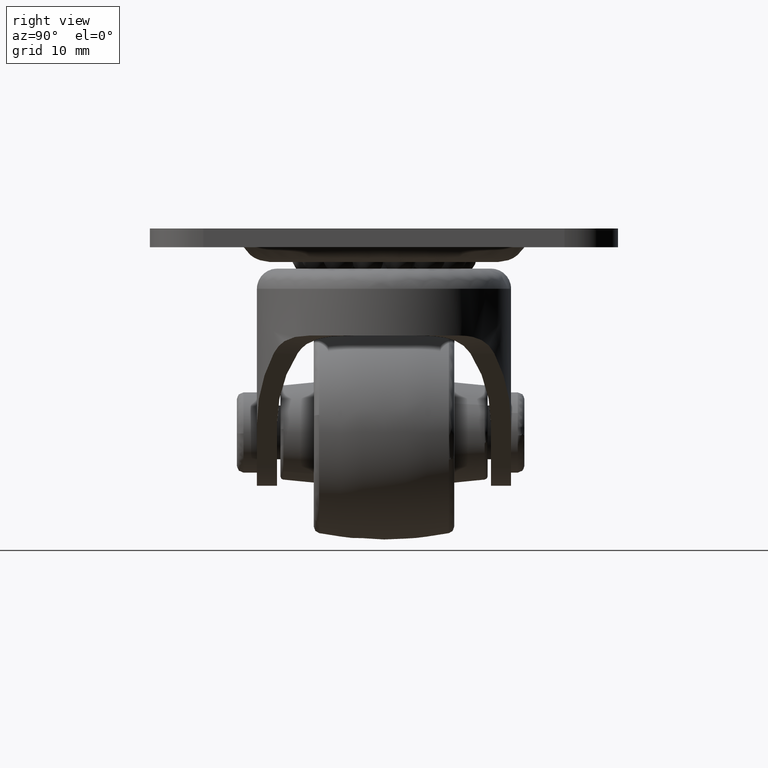
[diagram: clean part render]
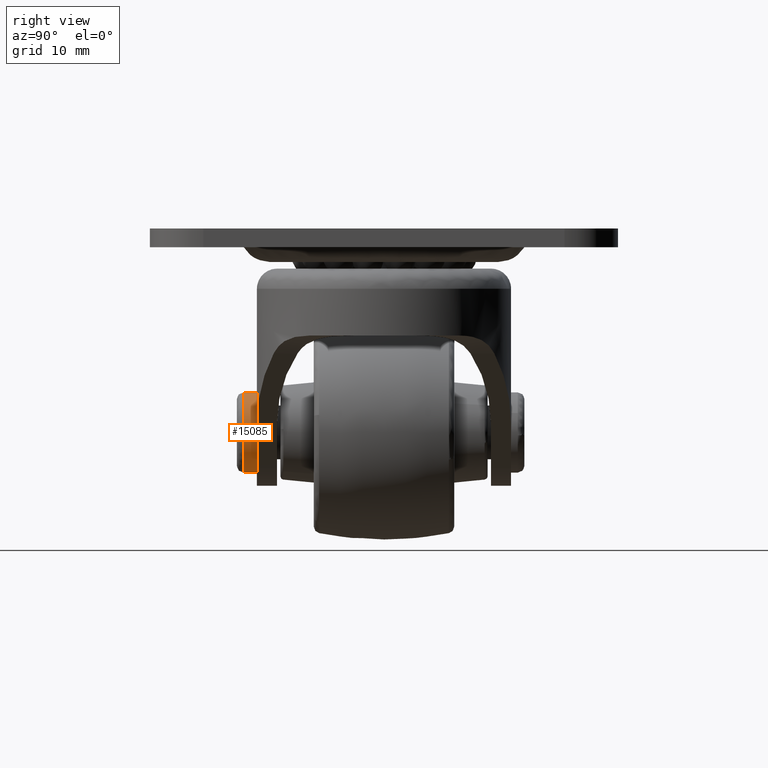
[diagram: same view with one face highlighted and labeled with its STEP entity id]
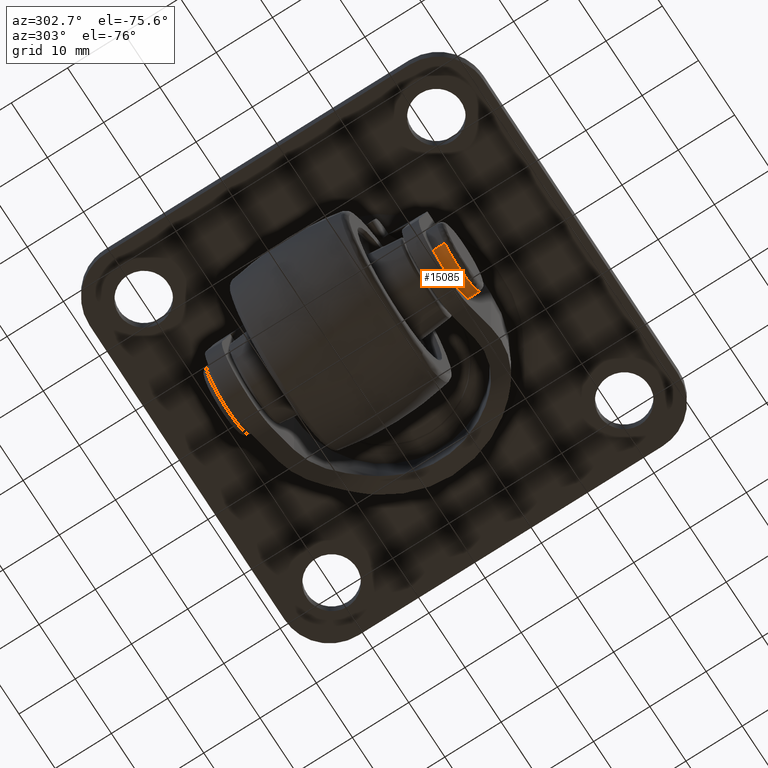
[diagram: same view with one face highlighted and labeled with its STEP entity id]
A machine part, right view. The second image highlights one B-rep face of the part: STEP entity #15085.
A second angle (auxiliary view) of the same face is appended — the face is thin or edge-on in the first view.
In plain terms, the highlighted face is a freeform B-spline surface patch.
Its self-contained STEP definition (entity closure, byte-faithful):
#14938=CARTESIAN_POINT('',(-3.926037942016228,-18.950000001287485,-4.537204654613778));
#14939=CARTESIAN_POINT('',(0.114305147870723,-18.950000001287485,-8.033308859110923));
#14940=CARTESIAN_POINT('',(4.053541245693961,-18.950000001287489,-4.423664020860741));
#14941=CARTESIAN_POINT('',(8.477205266554705,-18.950000001287489,-0.370122775166780));
#14942=CARTESIAN_POINT('',(4.423664020860743,-18.950000001287489,4.053541245693963));
#14943=CARTESIAN_POINT('',(0.370122775166782,-18.950000001287489,8.477205266554705));
#14944=CARTESIAN_POINT('',(-4.053541245693961,-18.950000001287489,4.423664020860745));
#14945=CARTESIAN_POINT('',(-3.926037942016228,-21.051249947180747,-4.537204654613778));
#14946=CARTESIAN_POINT('',(0.114305147870723,-21.051249947180743,-8.033308859110923));
#14947=CARTESIAN_POINT('',(4.053541245693961,-21.051249947180750,-4.423664020860741));
#14948=CARTESIAN_POINT('',(8.477205266554705,-21.051249947180750,-0.370122775166780));
#14949=CARTESIAN_POINT('',(4.423664020860743,-21.051249947180750,4.053541245693963));
#14950=CARTESIAN_POINT('',(0.370122775166782,-21.051249947180750,8.477205266554705));
#14951=CARTESIAN_POINT('',(-4.053541245693961,-21.051249947180750,4.423664020860745));
#14959=(BOUNDED_SURFACE()B_SPLINE_SURFACE(2,1,((#14938,#14945),(#14939,#14946),(#14940,#14947),(#14941,#14948),(#14942,#14949),(#14943,#14950),(#14944,#14951)),.UNSPECIFIED.,.F.,.F.,.U.)B_SPLINE_SURFACE_WITH_KNOTS((3,2,2,3),(2,2),(0.0,9.145835457197936,19.086960954152222,29.028086451106500),(0.0,2.101249945893263),.UNSPECIFIED.)GEOMETRIC_REPRESENTATION_ITEM()RATIONAL_B_SPLINE_SURFACE(((0.956886118190660,0.956886118190660),(0.730538238691624,0.730538238691624),(1.0,1.0),(0.707106781186548,0.707106781186548),(1.0,1.0),(0.707106781186548,0.707106781186548),(1.0,1.0)))REPRESENTATION_ITEM('')SURFACE());
#14960=CARTESIAN_POINT('',(-3.926036244408476,-19.000000000000281,-4.537206123550694));
#14961=VERTEX_POINT('',#14960);
#14962=CARTESIAN_POINT('',(0.0,-19.0,-5.999999999999998));
#14963=VERTEX_POINT('',#14962);
#14964=CARTESIAN_POINT('',(-3.926036244408477,-19.000000000000277,-4.537206123550694));
#14965=CARTESIAN_POINT('',(-2.235527823053927,-19.0,-5.999999999999998));
#14966=CARTESIAN_POINT('',(0.0,-19.0,-5.999999999999998));
#14974=(BOUNDED_CURVE()B_SPLINE_CURVE(2,(#14964,#14965,#14966),.UNSPECIFIED.,.F.,.U.)B_SPLINE_CURVE_WITH_KNOTS((3,3),(0.885882176477305,1.0),.UNSPECIFIED.)CURVE()GEOMETRIC_REPRESENTATION_ITEM()RATIONAL_B_SPLINE_CURVE((0.854663308413889,0.866302653377809,1.0))REPRESENTATION_ITEM(''));
#14975=EDGE_CURVE('',#14961,#14963,#14974,.T.);
#14976=ORIENTED_EDGE('',*,*,#14975,.T.);
#14977=CARTESIAN_POINT('',(0.0,-19.0,6.000000000000002));
#14978=VERTEX_POINT('',#14977);
#14979=CARTESIAN_POINT('',(0.0,-19.0,-5.999999999999998));
#14980=CARTESIAN_POINT('',(6.0,-18.999999999999993,-5.999999999999998));
#14981=CARTESIAN_POINT('',(6.0,-19.0,1.469528E-015));
#14982=CARTESIAN_POINT('',(6.0,-18.999999999999993,6.000000000000003));
#14983=CARTESIAN_POINT('',(0.0,-19.0,6.000000000000002));
#14991=(BOUNDED_CURVE()B_SPLINE_CURVE(2,(#14979,#14980,#14981,#14982,#14983),.UNSPECIFIED.,.F.,.U.)B_SPLINE_CURVE_WITH_KNOTS((3,2,3),(0.0,0.250000000000000,0.500000000000000),.UNSPECIFIED.)CURVE()GEOMETRIC_REPRESENTATION_ITEM()RATIONAL_B_SPLINE_CURVE((1.0,0.707106781186548,1.0,0.707106781186548,1.0))REPRESENTATION_ITEM(''));
#14992=EDGE_CURVE('',#14963,#14978,#14991,.T.);
#14993=ORIENTED_EDGE('',*,*,#14992,.T.);
#14994=CARTESIAN_POINT('',(-4.053540204421506,-19.0,4.423664975010706));
#14995=VERTEX_POINT('',#14994);
#14996=CARTESIAN_POINT('',(0.0,-19.0,6.000000000000002));
#14997=CARTESIAN_POINT('',(-2.333271578167204,-19.000000000000004,6.000000000000002));
#14998=CARTESIAN_POINT('',(-4.053540204421507,-18.999999999999996,4.423664975010706));
#15006=(BOUNDED_CURVE()B_SPLINE_CURVE(2,(#14996,#14997,#14998),.UNSPECIFIED.,.F.,.U.)B_SPLINE_CURVE_WITH_KNOTS((3,3),(0.500000000000000,0.618415173550032),.UNSPECIFIED.)CURVE()GEOMETRIC_REPRESENTATION_ITEM()RATIONAL_B_SPLINE_CURVE((1.0,0.861267994650310,0.853959785224040))REPRESENTATION_ITEM(''));
#15007=EDGE_CURVE('',#14978,#14995,#15006,.T.);
#15008=ORIENTED_EDGE('',*,*,#15007,.T.);
#15009=CARTESIAN_POINT('',(-4.053540096365254,-20.999999947871729,4.423665074025729));
#15010=VERTEX_POINT('',#15009);
#15011=CARTESIAN_POINT('',(-4.053540204421506,-19.0,4.423664975010706));
#15012=CARTESIAN_POINT('',(-4.053540096365254,-20.999999947871729,4.423665074025729));
#15013=QUASI_UNIFORM_CURVE('',1,(#15011,#15012),.UNSPECIFIED.,.F.,.U.);
#15014=EDGE_CURVE('',#14995,#15010,#15013,.T.);
#15015=ORIENTED_EDGE('',*,*,#15014,.T.);
#15016=CARTESIAN_POINT('',(0.0,-20.999999947639999,6.000000000000002));
#15017=VERTEX_POINT('',#15016);
#15018=CARTESIAN_POINT('',(0.0,-20.999999947639999,6.000000000000002));
#15019=CARTESIAN_POINT('',(-2.333271493804585,-20.999999947640006,6.000000000000003));
#15020=CARTESIAN_POINT('',(-4.053540096365254,-20.999999947871725,4.423665074025729));
#15028=(BOUNDED_CURVE()B_SPLINE_CURVE(2,(#15018,#15019,#15020),.UNSPECIFIED.,.F.,.U.)B_SPLINE_CURVE_WITH_KNOTS((3,3),(0.500000000000000,0.618415169862546),.UNSPECIFIED.)CURVE()GEOMETRIC_REPRESENTATION_ITEM()RATIONAL_B_SPLINE_CURVE((1.0,0.861267998970469,0.853959785679200))REPRESENTATION_ITEM(''));
#15029=EDGE_CURVE('',#15017,#15010,#15028,.T.);
#15030=ORIENTED_EDGE('',*,*,#15029,.F.);
#15031=CARTESIAN_POINT('',(5.998105135699761,-20.999999948500420,-0.150780572661478));
#15032=VERTEX_POINT('',#15031);
#15033=CARTESIAN_POINT('',(5.998105135699761,-20.999999948500424,-0.150780572661478));
#15034=CARTESIAN_POINT('',(6.0,-20.999999947639996,-0.075402192741732));
#15035=CARTESIAN_POINT('',(6.0,-20.999999947639999,1.469528E-015));
#15036=CARTESIAN_POINT('',(6.0,-20.999999947640003,6.000000000000003));
#15037=CARTESIAN_POINT('',(0.0,-20.999999947639999,6.000000000000002));
#15045=(BOUNDED_CURVE()B_SPLINE_CURVE(2,(#15033,#15034,#15035,#15036,#15037),.UNSPECIFIED.,.F.,.U.)B_SPLINE_CURVE_WITH_KNOTS((3,2,3),(0.245579891769723,0.250000000000000,0.500000000000000),.UNSPECIFIED.)CURVE()GEOMETRIC_REPRESENTATION_ITEM()RATIONAL_B_SPLINE_CURVE((0.989826157681384,0.994821521091721,1.0,0.707106781186548,1.0))REPRESENTATION_ITEM(''));
#15046=EDGE_CURVE('',#15032,#15017,#15045,.T.);
#15047=ORIENTED_EDGE('',*,*,#15046,.F.);
#15048=CARTESIAN_POINT('',(0.0,-20.999999947639999,-5.999999999999998));
#15049=VERTEX_POINT('',#15048);
#15050=CARTESIAN_POINT('',(0.0,-20.999999947639999,-5.999999999999998));
#15051=CARTESIAN_POINT('',(5.851067257081057,-20.999999947639996,-5.999999999999997));
#15052=CARTESIAN_POINT('',(5.998105135699761,-20.999999948500427,-0.150780572661478));
#15060=(BOUNDED_CURVE()B_SPLINE_CURVE(2,(#15050,#15051,#15052),.UNSPECIFIED.,.F.,.U.)B_SPLINE_CURVE_WITH_KNOTS((3,3),(0.0,0.245579891769723),.UNSPECIFIED.)CURVE()GEOMETRIC_REPRESENTATION_ITEM()RATIONAL_B_SPLINE_CURVE((1.0,0.712285260094827,0.989826157681384))REPRESENTATION_ITEM(''));
#15061=EDGE_CURVE('',#15049,#15032,#15060,.T.);
#15062=ORIENTED_EDGE('',*,*,#15061,.F.);
#15063=CARTESIAN_POINT('',(-3.926036264858716,-20.999999947639999,-4.537206105855153));
#15064=VERTEX_POINT('',#15063);
#15065=CARTESIAN_POINT('',(-3.926036264858716,-20.999999947639996,-4.537206105855153));
#15066=CARTESIAN_POINT('',(-2.235527838452723,-20.999999947640003,-5.999999999999998));
#15067=CARTESIAN_POINT('',(0.0,-20.999999947639999,-5.999999999999998));
#15075=(BOUNDED_CURVE()B_SPLINE_CURVE(2,(#15065,#15066,#15067),.UNSPECIFIED.,.F.,.U.)B_SPLINE_CURVE_WITH_KNOTS((3,3),(0.885882175796332,1.0),.UNSPECIFIED.)CURVE()GEOMETRIC_REPRESENTATION_ITEM()RATIONAL_B_SPLINE_CURVE((0.854663308274978,0.866302652580000,1.0))REPRESENTATION_ITEM(''));
#15076=EDGE_CURVE('',#15064,#15049,#15075,.T.);
#15077=ORIENTED_EDGE('',*,*,#15076,.F.);
#15078=CARTESIAN_POINT('',(-3.926036244408476,-19.000000000000281,-4.537206123550694));
#15079=CARTESIAN_POINT('',(-3.926036264858716,-20.999999947639999,-4.537206105855153));
#15080=QUASI_UNIFORM_CURVE('',1,(#15078,#15079),.UNSPECIFIED.,.F.,.U.);
#15081=EDGE_CURVE('',#14961,#15064,#15080,.T.);
#15082=ORIENTED_EDGE('',*,*,#15081,.F.);
#15083=EDGE_LOOP('',(#14976,#14993,#15008,#15015,#15030,#15047,#15062,#15077,#15082));
#15084=FACE_OUTER_BOUND('',#15083,.T.);
#15085=ADVANCED_FACE('',(#15084),#14959,.T.);